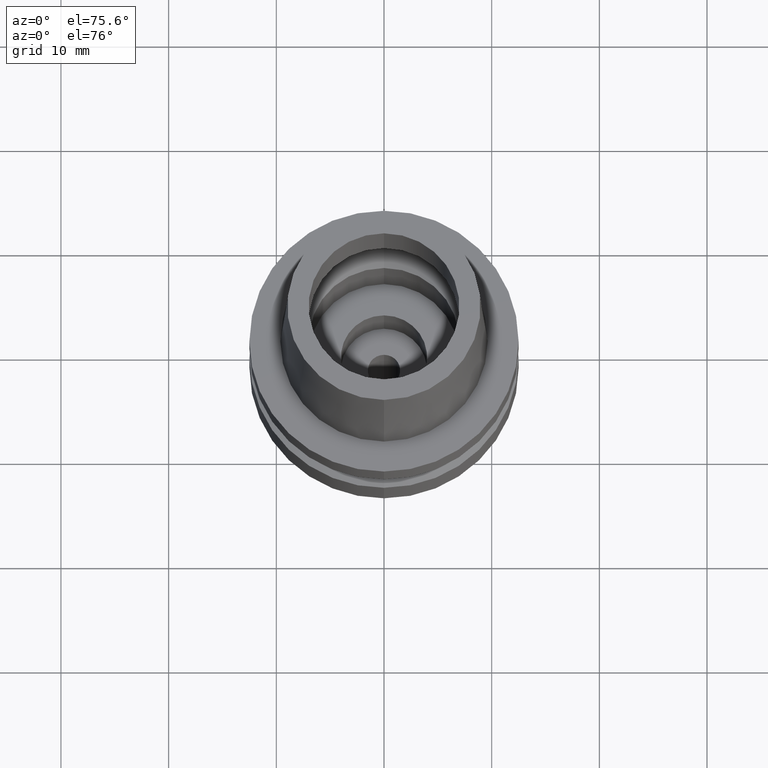
[diagram: clean part render]
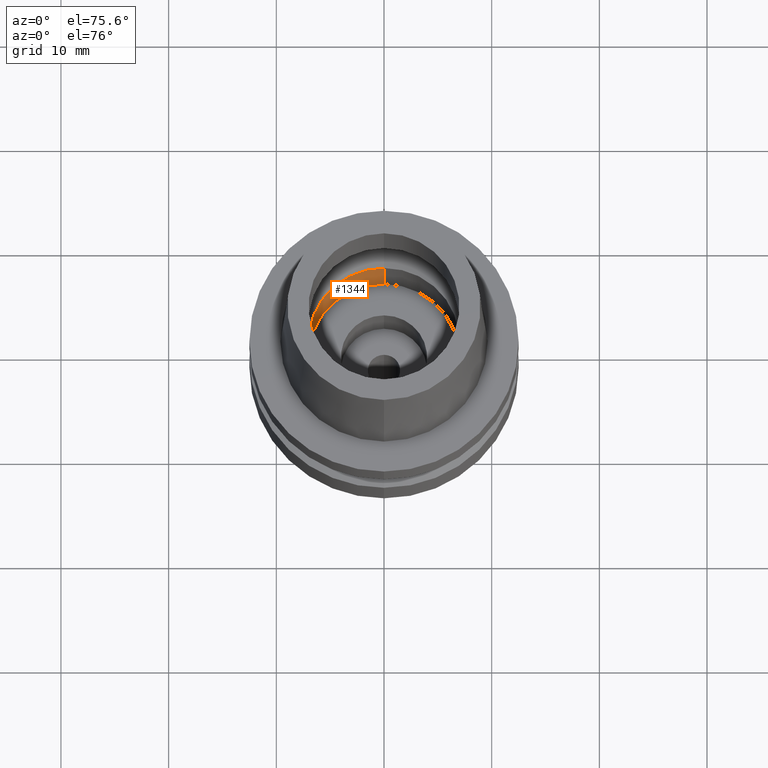
[diagram: same view with one face highlighted and labeled with its STEP entity id]
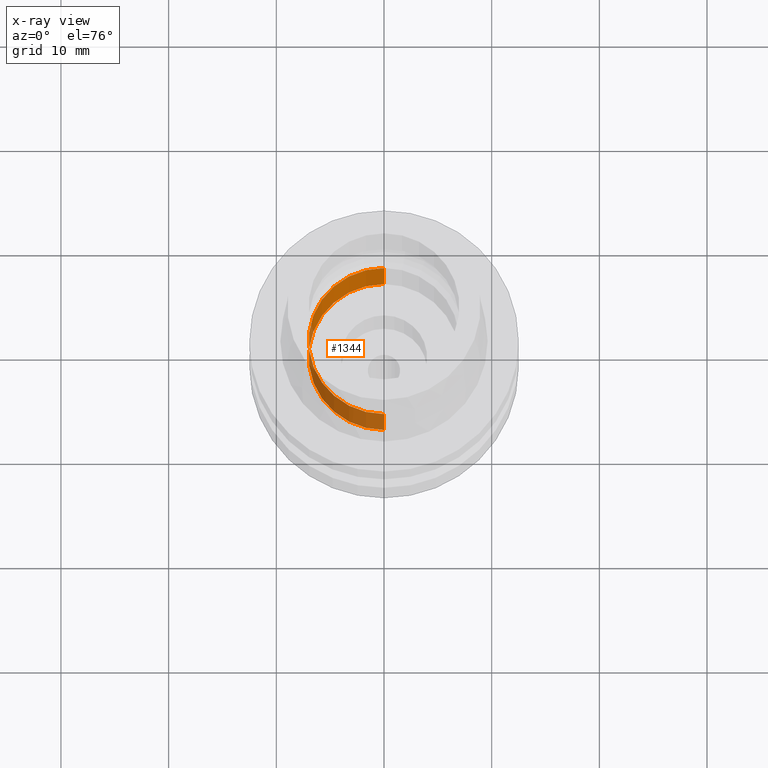
[diagram: x-ray of the same camera — body ghosted, the highlighted face saturated]
A machine part, auxiliary view. The second image highlights one B-rep face of the part: STEP entity #1344.
The next image is the same camera in x-ray: the body ghosted, the highlighted face saturated — about 52% of this face is hidden behind the body in this view.
In plain terms, the highlighted cylindrical surface (partial cylindrical patch) has radius 7 mm, axis along (0, 0, -1).
Its self-contained STEP definition (entity closure, byte-faithful):
#522=CARTESIAN_POINT('',(0.E0,1.419365640212E-14,-5.95E0));
#523=DIRECTION('',(0.E0,0.E0,-1.E0));
#524=DIRECTION('',(0.E0,-1.E0,0.E0));
#525=AXIS2_PLACEMENT_3D('',#522,#523,#524);
#554=DIRECTION('',(0.E0,0.E0,1.E0));
#555=VECTOR('',#554,5.95E0);
#556=CARTESIAN_POINT('',(0.E0,-7.E0,-5.95E0));
#557=LINE('',#556,#555);
#561=CARTESIAN_POINT('',(0.E0,1.419365640212E-14,2.131628207280E-14));
#562=DIRECTION('',(0.E0,0.E0,-1.E0));
#563=DIRECTION('',(0.E0,-1.E0,0.E0));
#564=AXIS2_PLACEMENT_3D('',#561,#562,#563);
#569=DIRECTION('',(0.E0,0.E0,1.E0));
#570=VECTOR('',#569,5.95E0);
#571=CARTESIAN_POINT('',(0.E0,7.E0,-5.95E0));
#572=LINE('',#571,#570);
#744=CARTESIAN_POINT('',(0.E0,7.E0,1.953992523340E-14));
#745=VERTEX_POINT('',#744);
#746=CARTESIAN_POINT('',(0.E0,-7.E0,1.953992523340E-14));
#747=VERTEX_POINT('',#746);
#748=CARTESIAN_POINT('',(0.E0,7.E0,-5.95E0));
#749=VERTEX_POINT('',#748);
#750=CARTESIAN_POINT('',(0.E0,-7.E0,-5.95E0));
#751=VERTEX_POINT('',#750);
#1330=CARTESIAN_POINT('',(0.E0,1.419365640212E-14,1.59E1));
#1331=DIRECTION('',(0.E0,0.E0,-1.E0));
#1332=DIRECTION('',(0.E0,-1.E0,0.E0));
#1333=AXIS2_PLACEMENT_3D('',#1330,#1331,#1332);
#1334=CYLINDRICAL_SURFACE('',#1333,7.E0);
#1336=ORIENTED_EDGE('',*,*,#1335,.F.);
#1337=ORIENTED_EDGE('',*,*,#1319,.F.);
#1339=ORIENTED_EDGE('',*,*,#1338,.T.);
#1341=ORIENTED_EDGE('',*,*,#1340,.T.);
#1342=EDGE_LOOP('',(#1336,#1337,#1339,#1341));
#1343=FACE_OUTER_BOUND('',#1342,.F.);
#526=CIRCLE('',#525,7.E0);
#565=CIRCLE('',#564,7.E0);
#1319=EDGE_CURVE('',#751,#749,#526,.T.);
#1335=EDGE_CURVE('',#749,#745,#572,.T.);
#1338=EDGE_CURVE('',#751,#747,#557,.T.);
#1340=EDGE_CURVE('',#747,#745,#565,.T.);
#1344=ADVANCED_FACE('',(#1343),#1334,.F.);